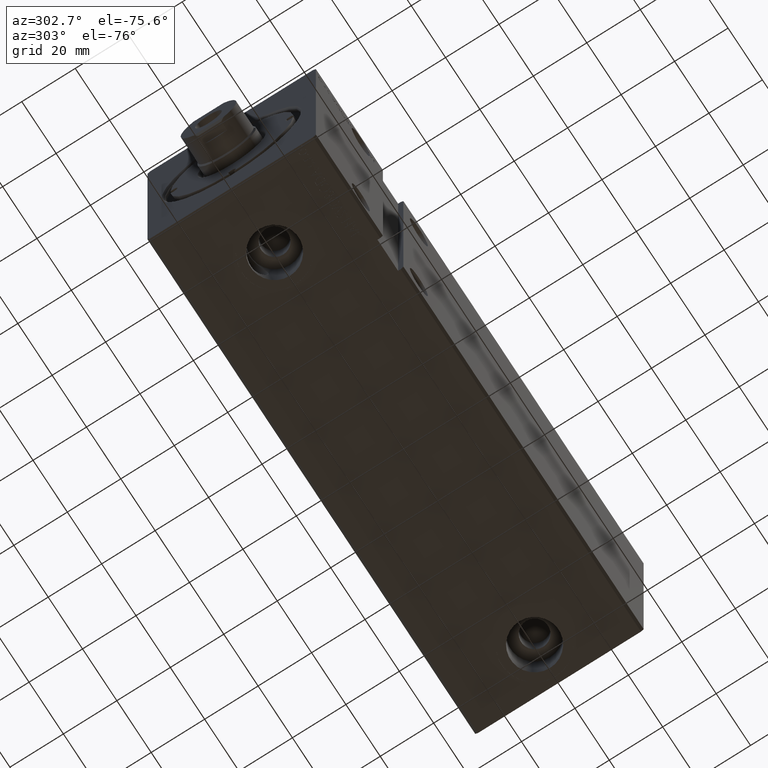
[diagram: clean part render]
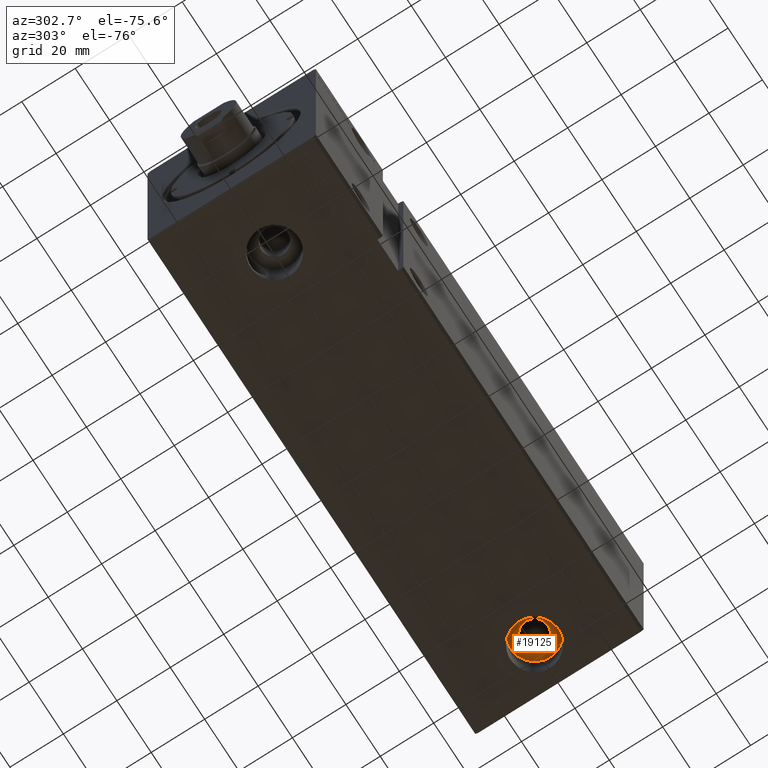
[diagram: same view with one face highlighted and labeled with its STEP entity id]
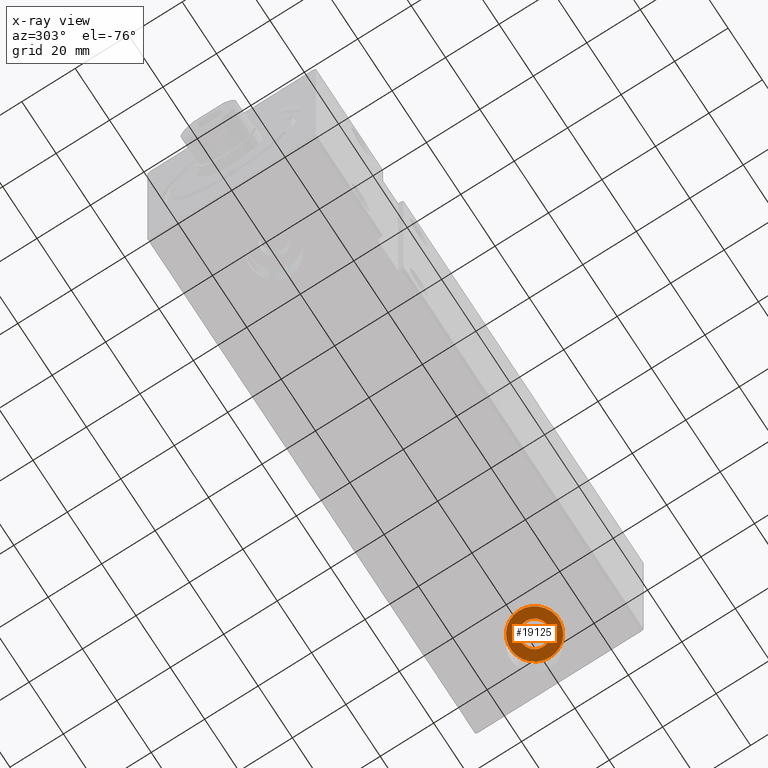
[diagram: x-ray of the same camera — body ghosted, the highlighted face saturated]
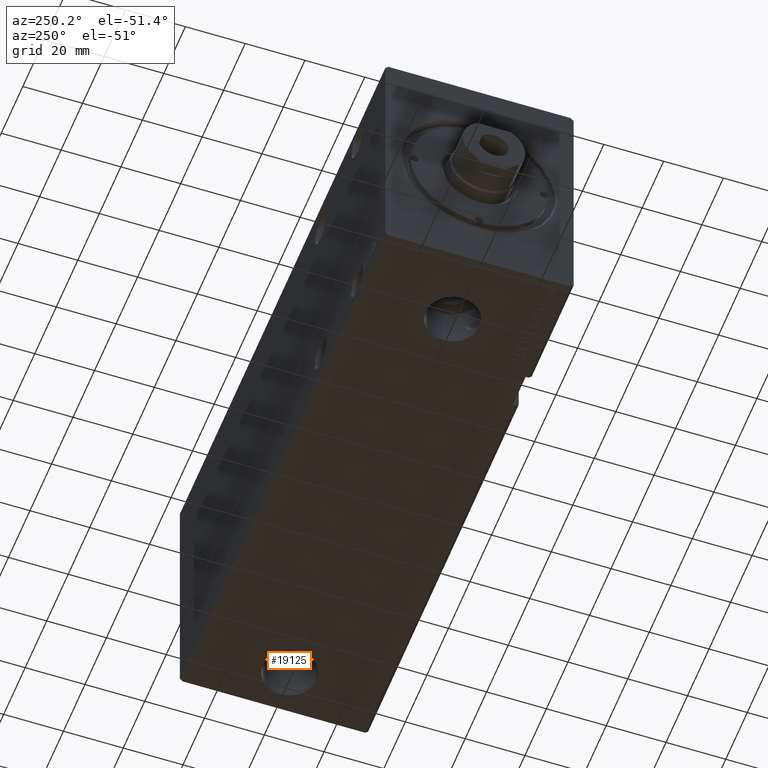
[diagram: same view with one face highlighted and labeled with its STEP entity id]
A machine part, auxiliary view. The second image highlights one B-rep face of the part: STEP entity #19125.
The next image is the same camera in x-ray: the body ghosted, the highlighted face saturated — about 0% of this face is hidden behind the body in this view.
A second angle (auxiliary view) of the same face is appended — the face is thin or edge-on in the first view.
In plain terms, the highlighted planar face has unit normal (0, 0, -1).
Its self-contained STEP definition (entity closure, byte-faithful):
#859 = CIRCLE ( 'NONE', #11813, 9.000000000000007105 ) ;
#1794 = EDGE_CURVE ( 'NONE', #31217, #23957, #24697, .T. ) ;
#2369 = DIRECTION ( 'NONE',  ( 0.000000000000000000, 0.000000000000000000, -1.000000000000000000 ) ) ;
#5180 = ORIENTED_EDGE ( 'NONE', *, *, #1794, .F. ) ;
#5728 = CARTESIAN_POINT ( 'NONE',  ( 185.5000000000000000, -1.921754668021966843E-14, -28.80000000000000782 ) ) ;
#5786 = FACE_BOUND ( 'NONE', #30922, .T. ) ;
#6501 = AXIS2_PLACEMENT_3D ( 'NONE', #30013, #2369, #18872 ) ;
#7478 = DIRECTION ( 'NONE',  ( -1.000000000000000000, 0.000000000000000000, 0.000000000000000000 ) ) ;
#9274 = DIRECTION ( 'NONE',  ( -1.000000000000000000, 0.000000000000000000, 0.000000000000000000 ) ) ;
#10308 = CARTESIAN_POINT ( 'NONE',  ( 176.5000000000000000, -2.031972879945228792E-14, -28.80000000000000782 ) ) ;
#11505 = DIRECTION ( 'NONE',  ( -1.000000000000000000, 0.000000000000000000, 0.000000000000000000 ) ) ;
#11813 = AXIS2_PLACEMENT_3D ( 'NONE', #26866, #33889, #9274 ) ;
#12118 = AXIS2_PLACEMENT_3D ( 'NONE', #24531, #39710, #31005 ) ;
#14387 = AXIS2_PLACEMENT_3D ( 'NONE', #10308, #28081, #7478 ) ;
#15979 = VERTEX_POINT ( 'NONE', #5728 ) ;
#16304 = CIRCLE ( 'NONE', #34352, 9.000000000000007105 ) ;
#16367 = EDGE_CURVE ( 'NONE', #15979, #38620, #859, .T. ) ;
#16701 = ORIENTED_EDGE ( 'NONE', *, *, #39067, .F. ) ;
#18674 = FACE_OUTER_BOUND ( 'NONE', #25432, .T. ) ;
#18872 = DIRECTION ( 'NONE',  ( -1.000000000000000000, 0.000000000000000000, 0.000000000000000000 ) ) ;
#19125 = ADVANCED_FACE ( 'NONE', ( #5786, #18674 ), #36478, .T. ) ;
#21263 = ORIENTED_EDGE ( 'NONE', *, *, #28166, .T. ) ;
#23884 = CIRCLE ( 'NONE', #6501, 5.000000000000004441 ) ;
#23957 = VERTEX_POINT ( 'NONE', #34980 ) ;
#24531 = CARTESIAN_POINT ( 'NONE',  ( 0.000000000000000000, 0.000000000000000000, -28.80000000000000782 ) ) ;
#24697 = CIRCLE ( 'NONE', #14387, 5.000000000000004441 ) ;
#25432 = EDGE_LOOP ( 'NONE', ( #21263, #37185 ) ) ;
#26866 = CARTESIAN_POINT ( 'NONE',  ( 176.5000000000000000, -2.031972879945228792E-14, -28.80000000000000782 ) ) ;
#28081 = DIRECTION ( 'NONE',  ( 0.000000000000000000, 0.000000000000000000, -1.000000000000000000 ) ) ;
#28166 = EDGE_CURVE ( 'NONE', #38620, #15979, #16304, .T. ) ;
#30013 = CARTESIAN_POINT ( 'NONE',  ( 176.5000000000000000, -2.031972879945228792E-14, -28.80000000000000782 ) ) ;
#30922 = EDGE_LOOP ( 'NONE', ( #16701, #5180 ) ) ;
#31005 = DIRECTION ( 'NONE',  ( -1.000000000000000000, 0.000000000000000000, -0.000000000000000000 ) ) ;
#31217 = VERTEX_POINT ( 'NONE', #33462 ) ;
#33462 = CARTESIAN_POINT ( 'NONE',  ( 181.5000000000000000, -1.970740539987861534E-14, -28.80000000000000782 ) ) ;
#33889 = DIRECTION ( 'NONE',  ( 0.000000000000000000, 0.000000000000000000, -1.000000000000000000 ) ) ;
#34352 = AXIS2_PLACEMENT_3D ( 'NONE', #36136, #39168, #11505 ) ;
#34980 = CARTESIAN_POINT ( 'NONE',  ( 171.5000000000000000, -2.031972879945228792E-14, -28.80000000000000782 ) ) ;
#35321 = CARTESIAN_POINT ( 'NONE',  ( 167.4999999999999716, -2.031972879945228792E-14, -28.80000000000000782 ) ) ;
#36136 = CARTESIAN_POINT ( 'NONE',  ( 176.5000000000000000, -2.031972879945228792E-14, -28.80000000000000782 ) ) ;
#36478 = PLANE ( 'NONE',  #12118 ) ;
#37185 = ORIENTED_EDGE ( 'NONE', *, *, #16367, .T. ) ;
#38620 = VERTEX_POINT ( 'NONE', #35321 ) ;
#39067 = EDGE_CURVE ( 'NONE', #23957, #31217, #23884, .T. ) ;
#39168 = DIRECTION ( 'NONE',  ( 0.000000000000000000, 0.000000000000000000, -1.000000000000000000 ) ) ;
#39710 = DIRECTION ( 'NONE',  ( 0.000000000000000000, 0.000000000000000000, -1.000000000000000000 ) ) ;